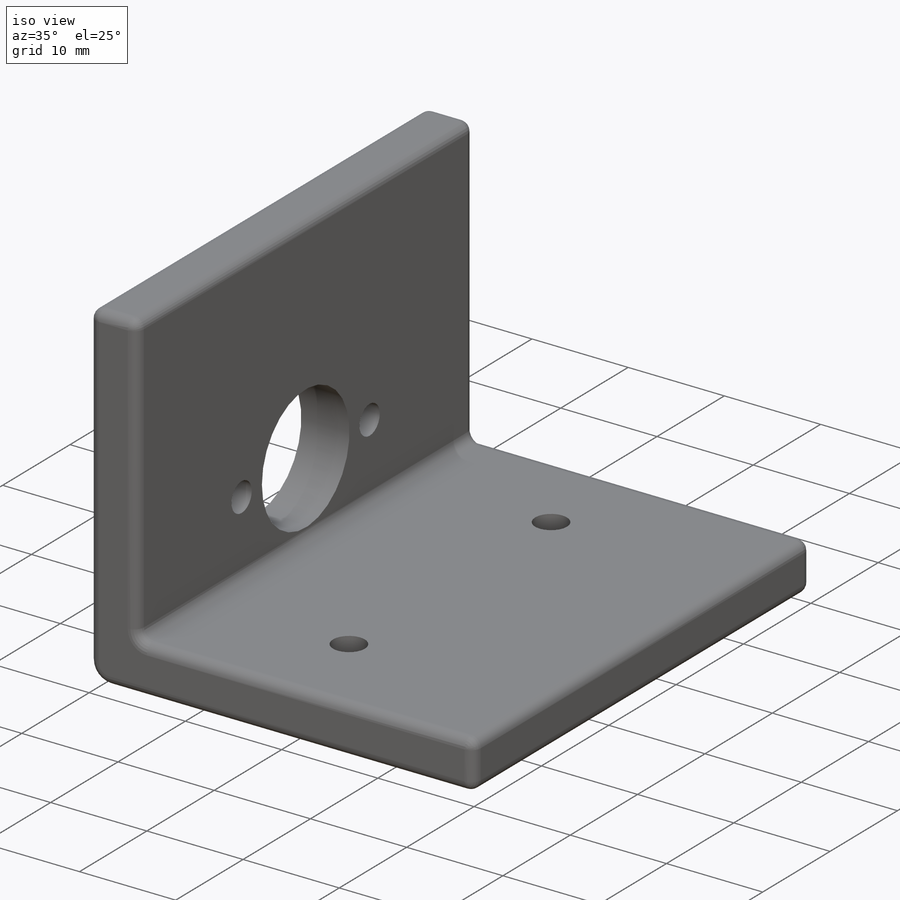
[diagram: iso view]
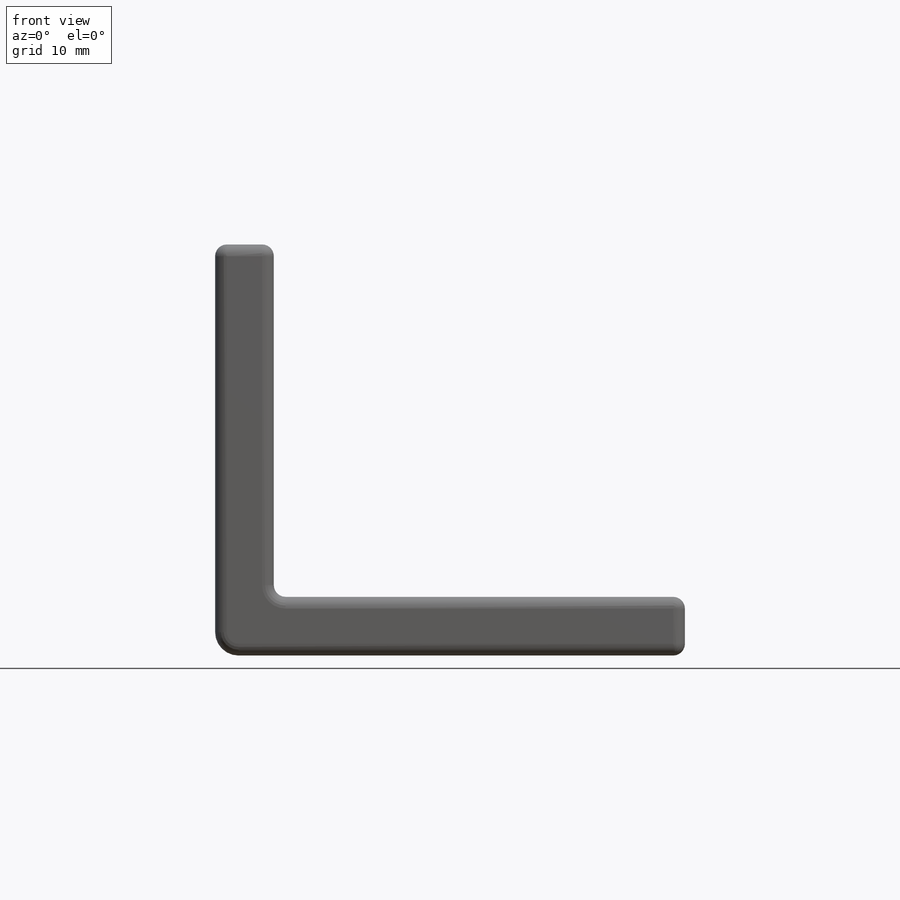
[diagram: front view]
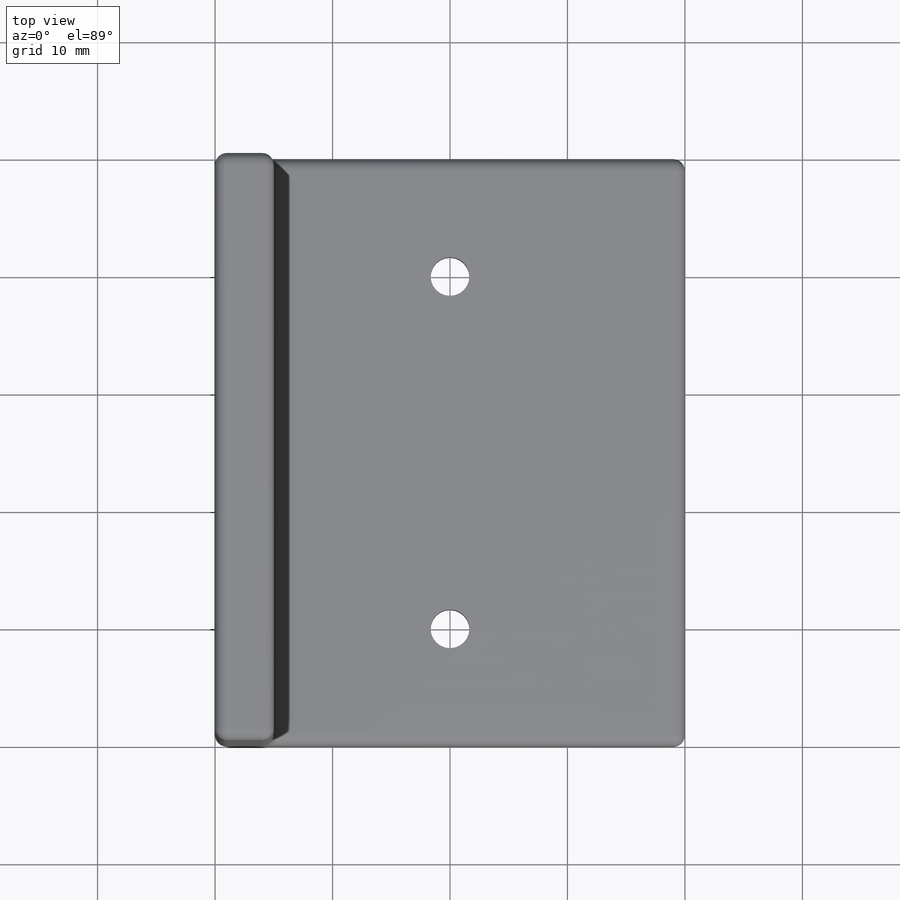
[diagram: top view]
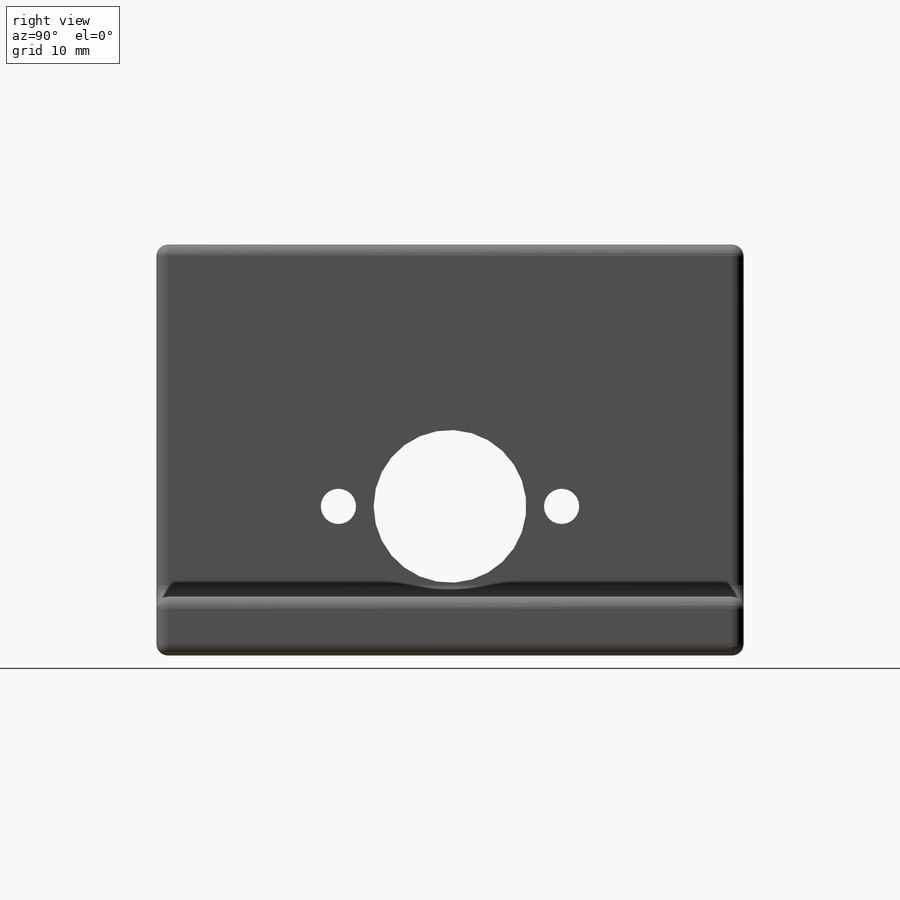
[diagram: right view]
SOLIDWORKS PART (.sldprt)
format: sldprt  version: not decoded by parser v0  size: 306,176 bytes
history: native  units: mm
features: sketch x3, fillet x3, cut_extrude x2, material x1, extrude x1 (+16 scaffold rows collapsed)
feature tree (26):
  scaffold x16  (default folders/planes/origin — collapsed)
  material  "Material <not specified>"
  sketch  "Sketch1"  dims[c1.D1=5.0mm c1.D2=2.0mm c1.D3=20.0mm c1.D4=2.0mm c1.D5=2.0mm c2.D3=2.0mm c2.D4=40.0mm c2.D5=20.0mm c2.D6=18.0mm c2.D2=35.0mm c3.D5=2.0mm c4.D5=90.0deg c5.D5=18.0mm c5.D3=5.0mm c6.D5=5.0mm c6.D6=5.0mm]
  extrude  "Boss-Extrude1"  Depth=50mm
  fillet  "Fillet1"  Radius=2mm
  sketch  "Sketch2"  dims[c1.D1=13.0mm c1.D2=10.0mm c1.D3=12.6mm c1.D6=3.0mm c1.D7=3.0mm c1.D8=3.4mm c2.D2=12.7mm c2.D3=15.0mm c2.D4=19.0mm c2.D5=9.5mm c2.D8=14.7mm c2.D9=14.7mm c3.D3=0.0mm]
  cut_extrude  "Cut-Extrude1"  Depth=20mm
  sketch  "Sketch3"  dims[c1.D1=2.25mm c1.D3=2.25mm c2.D1=4.5mm c2.D2=9.0mm c2.D3=0.0mm c2.D4=7.5mm c2.D5=15.0mm c2.D6=30.0mm c3.D2=15.0mm c3.D3=20.0mm]
  cut_extrude  "Cut-Extrude2"  Depth=20mm
  fillet  "Fillet2"  Radius=1mm
  fillet  "Fillet3"  Radius=1mm
decode coverage: 9 of 9 modeling features carry decoded parameters
note: suppression state not decoded; provenance and decode notes live in map.json
